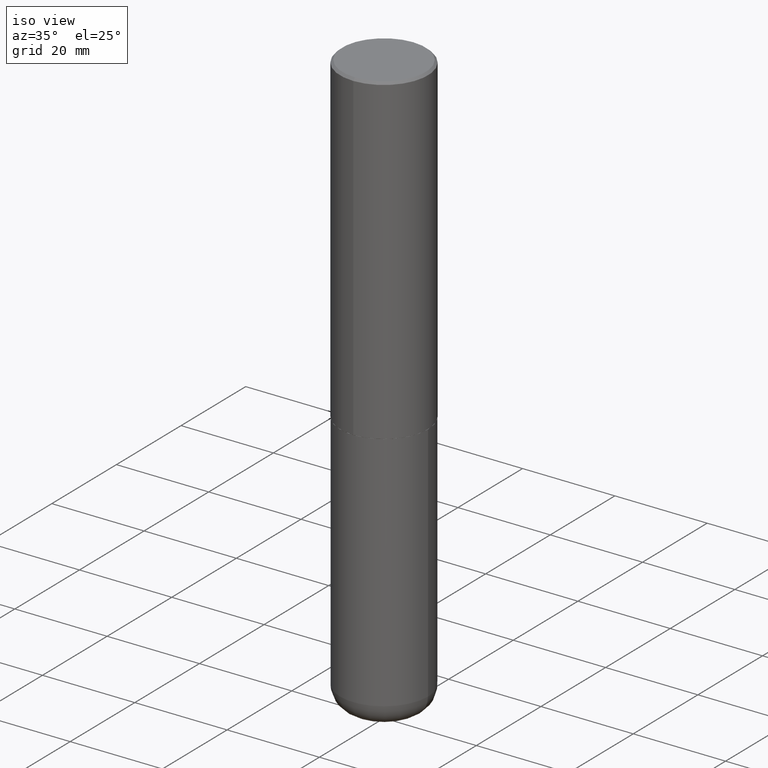
[diagram: clean part render]
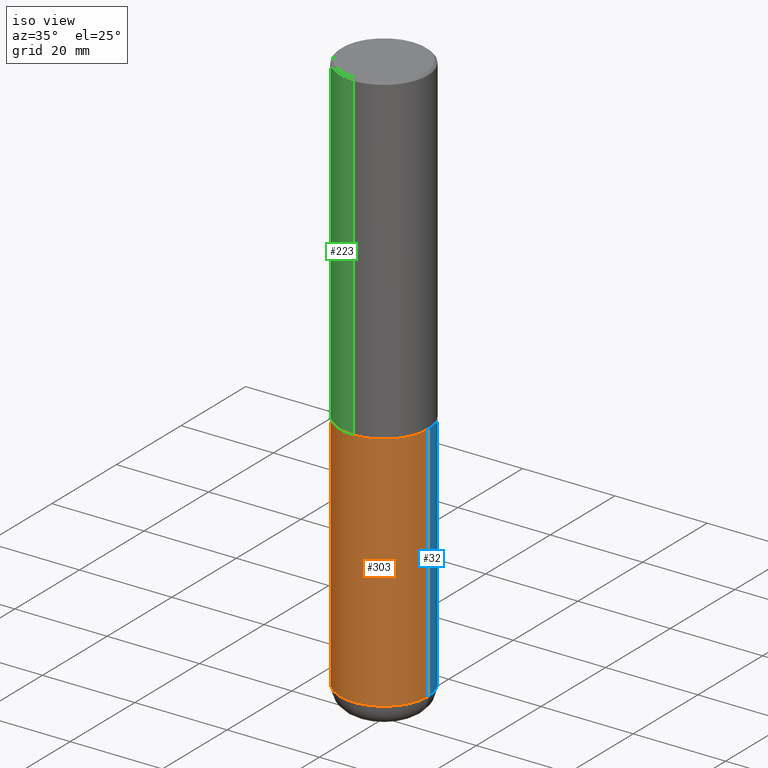
[diagram: same view with three faces highlighted in distinct colors, each labeled with its STEP entity id]
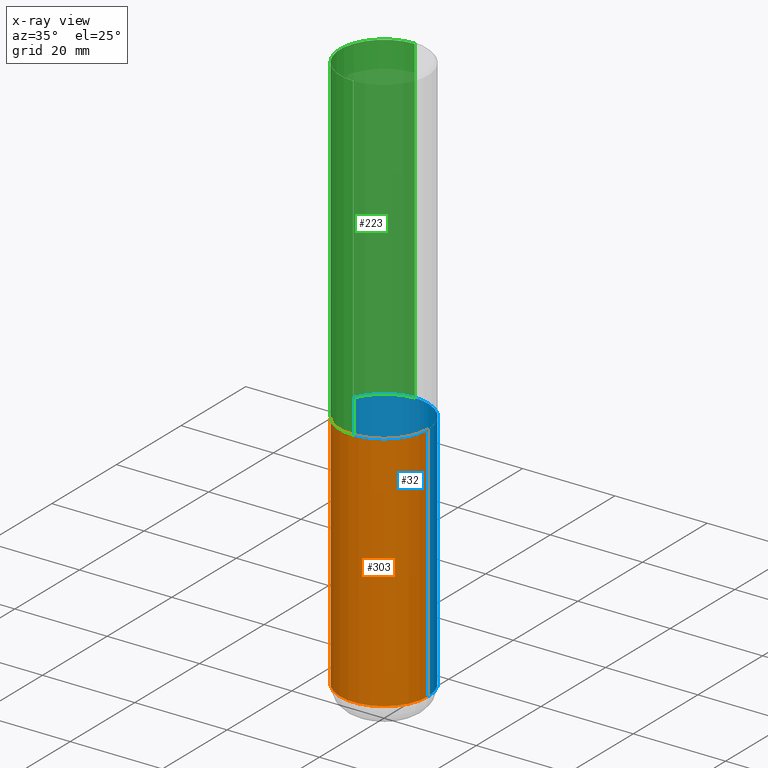
[diagram: x-ray of the same camera — body ghosted, the three highlighted faces saturated]
A machine part, iso view with three faces highlighted in distinct colors.
The next image is the same camera in x-ray (body ghosted, the three faces saturated) — at least one of them is partly hidden behind the body in this view.
Their STEP definitions:

[orange] entity #303 — the highlighted cylindrical surface (partial cylindrical patch) has radius 9.525 mm, axis along (-0, 0, 1).
#1 = DIRECTION ( 'NONE',  ( 1.000000000000000000, -6.982962677686266711E-15, 0.000000000000000000 ) ) ;
#18 = EDGE_CURVE ( 'NONE', #40, #276, #51, .T. ) ;
#19 = CARTESIAN_POINT ( 'NONE',  ( -0.3750000000000001110, 2.664535259100376486E-15, -1.844600658845590159E-29 ) ) ;
#33 = AXIS2_PLACEMENT_3D ( 'NONE', #321, #121, #250 ) ;
#38 = ORIENTED_EDGE ( 'NONE', *, *, #41, .T. ) ;
#40 = VERTEX_POINT ( 'NONE', #231 ) ;
#41 = EDGE_CURVE ( 'NONE', #195, #276, #267, .T. ) ;
#43 = DIRECTION ( 'NONE',  ( -2.445468806185136597E-29, 3.491481338843145583E-15, 1.000000000000000000 ) ) ;
#47 = CARTESIAN_POINT ( 'NONE',  ( 0.3750000000000000555, -1.941263624396788015E-14, -4.810000000000000497 ) ) ;
#51 = CIRCLE ( 'NONE', #96, 0.3750000000000000555 ) ;
#69 = CARTESIAN_POINT ( 'NONE',  ( 6.725039217009124520E-29, -9.601573681818649859E-15, -2.750000000000000000 ) ) ;
#71 = ORIENTED_EDGE ( 'NONE', *, *, #126, .F. ) ;
#73 = VERTEX_POINT ( 'NONE', #107 ) ;
#84 = DIRECTION ( 'NONE',  ( -2.445468806185136597E-29, 3.491481338843145583E-15, 1.000000000000000000 ) ) ;
#91 = CIRCLE ( 'NONE', #149, 0.3750000000000001110 ) ;
#96 = AXIS2_PLACEMENT_3D ( 'NONE', #69, #43, #1 ) ;
#107 = CARTESIAN_POINT ( 'NONE',  ( -0.3750000000000000555, -1.412948998073515443E-14, -4.810000000000000497 ) ) ;
#121 = DIRECTION ( 'NONE',  ( -2.445468806185136597E-29, 3.491481338843145583E-15, 1.000000000000000000 ) ) ;
#126 = EDGE_CURVE ( 'NONE', #73, #40, #207, .T. ) ;
#128 = EDGE_LOOP ( 'NONE', ( #71, #158, #38, #191 ) ) ;
#132 = CARTESIAN_POINT ( 'NONE',  ( 1.176270495775050811E-28, -1.679402523983553013E-14, -4.810000000000000497 ) ) ;
#142 = DIRECTION ( 'NONE',  ( -2.445468806185136877E-29, 3.491481338843145188E-15, 1.000000000000000000 ) ) ;
#149 = AXIS2_PLACEMENT_3D ( 'NONE', #132, #84, #407 ) ;
#156 = VECTOR ( 'NONE', #142, 39.37007874015748143 ) ;
#158 = ORIENTED_EDGE ( 'NONE', *, *, #324, .T. ) ;
#191 = ORIENTED_EDGE ( 'NONE', *, *, #18, .F. ) ;
#195 = VERTEX_POINT ( 'NONE', #47 ) ;
#207 = LINE ( 'NONE', #19, #397 ) ;
#215 = FACE_OUTER_BOUND ( 'NONE', #128, .T. ) ;
#231 = CARTESIAN_POINT ( 'NONE',  ( -0.3750000000000000555, -1.053326420172671351E-14, -2.750000000000000000 ) ) ;
#250 = DIRECTION ( 'NONE',  ( 1.000000000000000000, -6.982962677686265922E-15, 4.876176775795935793E-29 ) ) ;
#252 = CYLINDRICAL_SURFACE ( 'NONE', #33, 0.3750000000000001110 ) ;
#267 = LINE ( 'NONE', #310, #156 ) ;
#271 = DIRECTION ( 'NONE',  ( -2.445468806185136877E-29, 3.491481338843145188E-15, 1.000000000000000000 ) ) ;
#276 = VERTEX_POINT ( 'NONE', #279 ) ;
#279 = CARTESIAN_POINT ( 'NONE',  ( 0.3750000000000000555, -1.222018468595100145E-14, -2.750000000000000000 ) ) ;
#303 = ADVANCED_FACE ( 'NONE', ( #215 ), #252, .T. ) ;
#310 = CARTESIAN_POINT ( 'NONE',  ( 0.3750000000000001110, -2.618611004132350411E-15, 1.828566290923476483E-29 ) ) ;
#321 = CARTESIAN_POINT ( 'NONE',  ( 0.000000000000000000, 0.000000000000000000, 0.000000000000000000 ) ) ;
#324 = EDGE_CURVE ( 'NONE', #73, #195, #91, .T. ) ;
#397 = VECTOR ( 'NONE', #271, 39.37007874015748143 ) ;
#407 = DIRECTION ( 'NONE',  ( 1.000000000000000000, -6.982962677686265922E-15, 0.000000000000000000 ) ) ;

[blue] entity #32 — the highlighted cylindrical surface (partial cylindrical patch) has radius 9.525 mm, axis along (-0, 0, 1).
#19 = CARTESIAN_POINT ( 'NONE',  ( -0.3750000000000001110, 2.664535259100376486E-15, -1.844600658845590159E-29 ) ) ;
#32 = ADVANCED_FACE ( 'NONE', ( #404 ), #199, .T. ) ;
#40 = VERTEX_POINT ( 'NONE', #231 ) ;
#41 = EDGE_CURVE ( 'NONE', #195, #276, #267, .T. ) ;
#47 = CARTESIAN_POINT ( 'NONE',  ( 0.3750000000000000555, -1.941263624396788015E-14, -4.810000000000000497 ) ) ;
#70 = AXIS2_PLACEMENT_3D ( 'NONE', #155, #253, #357 ) ;
#73 = VERTEX_POINT ( 'NONE', #107 ) ;
#79 = DIRECTION ( 'NONE',  ( -2.445468806185136597E-29, 3.491481338843145583E-15, 1.000000000000000000 ) ) ;
#103 = CIRCLE ( 'NONE', #298, 0.3750000000000001110 ) ;
#107 = CARTESIAN_POINT ( 'NONE',  ( -0.3750000000000000555, -1.412948998073515443E-14, -4.810000000000000497 ) ) ;
#116 = DIRECTION ( 'NONE',  ( -2.445468806185136597E-29, 3.491481338843145583E-15, 1.000000000000000000 ) ) ;
#118 = EDGE_CURVE ( 'NONE', #195, #73, #103, .T. ) ;
#126 = EDGE_CURVE ( 'NONE', #73, #40, #207, .T. ) ;
#142 = DIRECTION ( 'NONE',  ( -2.445468806185136877E-29, 3.491481338843145188E-15, 1.000000000000000000 ) ) ;
#148 = ORIENTED_EDGE ( 'NONE', *, *, #41, .F. ) ;
#155 = CARTESIAN_POINT ( 'NONE',  ( 6.725039217009124520E-29, -9.601573681818649859E-15, -2.750000000000000000 ) ) ;
#156 = VECTOR ( 'NONE', #142, 39.37007874015748143 ) ;
#193 = EDGE_LOOP ( 'NONE', ( #328, #333, #244, #148 ) ) ;
#195 = VERTEX_POINT ( 'NONE', #47 ) ;
#199 = CYLINDRICAL_SURFACE ( 'NONE', #396, 0.3750000000000001110 ) ;
#203 = CARTESIAN_POINT ( 'NONE',  ( 0.000000000000000000, 0.000000000000000000, 0.000000000000000000 ) ) ;
#207 = LINE ( 'NONE', #19, #397 ) ;
#211 = CARTESIAN_POINT ( 'NONE',  ( 1.176270495775050811E-28, -1.679402523983553013E-14, -4.810000000000000497 ) ) ;
#231 = CARTESIAN_POINT ( 'NONE',  ( -0.3750000000000000555, -1.053326420172671351E-14, -2.750000000000000000 ) ) ;
#244 = ORIENTED_EDGE ( 'NONE', *, *, #270, .F. ) ;
#245 = DIRECTION ( 'NONE',  ( 1.000000000000000000, -6.982962677686265922E-15, 4.876176775795935793E-29 ) ) ;
#247 = CIRCLE ( 'NONE', #70, 0.3750000000000000555 ) ;
#253 = DIRECTION ( 'NONE',  ( -2.445468806185136597E-29, 3.491481338843145583E-15, 1.000000000000000000 ) ) ;
#267 = LINE ( 'NONE', #310, #156 ) ;
#270 = EDGE_CURVE ( 'NONE', #276, #40, #247, .T. ) ;
#271 = DIRECTION ( 'NONE',  ( -2.445468806185136877E-29, 3.491481338843145188E-15, 1.000000000000000000 ) ) ;
#276 = VERTEX_POINT ( 'NONE', #279 ) ;
#279 = CARTESIAN_POINT ( 'NONE',  ( 0.3750000000000000555, -1.222018468595100145E-14, -2.750000000000000000 ) ) ;
#298 = AXIS2_PLACEMENT_3D ( 'NONE', #211, #79, #340 ) ;
#310 = CARTESIAN_POINT ( 'NONE',  ( 0.3750000000000001110, -2.618611004132350411E-15, 1.828566290923476483E-29 ) ) ;
#328 = ORIENTED_EDGE ( 'NONE', *, *, #118, .T. ) ;
#333 = ORIENTED_EDGE ( 'NONE', *, *, #126, .T. ) ;
#340 = DIRECTION ( 'NONE',  ( 1.000000000000000000, -6.982962677686265922E-15, 0.000000000000000000 ) ) ;
#357 = DIRECTION ( 'NONE',  ( 1.000000000000000000, -6.982962677686266711E-15, 0.000000000000000000 ) ) ;
#396 = AXIS2_PLACEMENT_3D ( 'NONE', #203, #116, #245 ) ;
#397 = VECTOR ( 'NONE', #271, 39.37007874015748143 ) ;
#404 = FACE_OUTER_BOUND ( 'NONE', #193, .T. ) ;

[green] entity #223 — the highlighted cylindrical surface (partial cylindrical patch) has radius 9.525 mm, axis along (-0, 0, 1).
#27 = DIRECTION ( 'NONE',  ( -2.446040391741596606E-29, 3.490662795793665557E-15, 1.000000000000000000 ) ) ;
#34 = CIRCLE ( 'NONE', #291, 0.3750000000000003886 ) ;
#39 = VERTEX_POINT ( 'NONE', #263 ) ;
#63 = CARTESIAN_POINT ( 'NONE',  ( -2.572686749164323547E-15, -0.3750000000000001110, -0.01999999999999877570 ) ) ;
#65 = CARTESIAN_POINT ( 'NONE',  ( 2.664535259100411196E-15, 0.3749999999999907296, -2.749000000000000998 ) ) ;
#67 = DIRECTION ( 'NONE',  ( -6.982962677686265922E-15, -1.000000000000000000, 2.913971193241877611E-15 ) ) ;
#72 = ORIENTED_EDGE ( 'NONE', *, *, #329, .F. ) ;
#95 = ORIENTED_EDGE ( 'NONE', *, *, #380, .F. ) ;
#101 = VERTEX_POINT ( 'NONE', #306 ) ;
#124 = DIRECTION ( 'NONE',  ( -2.446040391741596606E-29, 3.490662795793665557E-15, 1.000000000000000000 ) ) ;
#141 = LINE ( 'NONE', #204, #161 ) ;
#143 = LINE ( 'NONE', #147, #182 ) ;
#147 = CARTESIAN_POINT ( 'NONE',  ( -2.618611004132351594E-15, -0.3750000000000002220, 1.308998548422625521E-15 ) ) ;
#161 = VECTOR ( 'NONE', #212, 39.37007874015748143 ) ;
#170 = CYLINDRICAL_SURFACE ( 'NONE', #174, 0.3750000000000002220 ) ;
#174 = AXIS2_PLACEMENT_3D ( 'NONE', #304, #27, #415 ) ;
#182 = VECTOR ( 'NONE', #339, 39.37007874015748143 ) ;
#204 = CARTESIAN_POINT ( 'NONE',  ( 2.664535259100376880E-15, 0.3750000000000002220, -1.308998548422625521E-15 ) ) ;
#208 = DIRECTION ( 'NONE',  ( -2.446040391741596606E-29, 3.490662795793665557E-15, 1.000000000000000000 ) ) ;
#212 = DIRECTION ( 'NONE',  ( -2.446040391741596606E-29, 3.490662795793665557E-15, 1.000000000000000000 ) ) ;
#223 = ADVANCED_FACE ( 'NONE', ( #412 ), #170, .T. ) ;
#229 = EDGE_LOOP ( 'NONE', ( #72, #293, #371, #95 ) ) ;
#230 = CIRCLE ( 'NONE', #382, 0.3750000000000000555 ) ;
#237 = DIRECTION ( 'NONE',  ( -6.982962677686265922E-15, -1.000000000000000000, 3.494488891895536035E-15 ) ) ;
#262 = CARTESIAN_POINT ( 'NONE',  ( 4.892080783483214581E-31, -6.981325591587361238E-17, -0.02000000000000008715 ) ) ;
#263 = CARTESIAN_POINT ( 'NONE',  ( 2.618611004132350411E-15, 0.3749999999999999445, -0.02000000000000139513 ) ) ;
#272 = VERTEX_POINT ( 'NONE', #65 ) ;
#287 = EDGE_CURVE ( 'NONE', #272, #101, #34, .T. ) ;
#291 = AXIS2_PLACEMENT_3D ( 'NONE', #320, #124, #67 ) ;
#293 = ORIENTED_EDGE ( 'NONE', *, *, #287, .T. ) ;
#295 = VERTEX_POINT ( 'NONE', #63 ) ;
#304 = CARTESIAN_POINT ( 'NONE',  ( 0.000000000000000000, 0.000000000000000000, 0.000000000000000000 ) ) ;
#306 = CARTESIAN_POINT ( 'NONE',  ( -2.618611004132284935E-15, -0.3750000000000099920, -2.748999999999999222 ) ) ;
#320 = CARTESIAN_POINT ( 'NONE',  ( 6.724165036897648492E-29, -9.595832025636787455E-15, -2.749000000000000110 ) ) ;
#329 = EDGE_CURVE ( 'NONE', #272, #39, #141, .T. ) ;
#339 = DIRECTION ( 'NONE',  ( -2.446040391741596606E-29, 3.490662795793665557E-15, 1.000000000000000000 ) ) ;
#371 = ORIENTED_EDGE ( 'NONE', *, *, #379, .T. ) ;
#379 = EDGE_CURVE ( 'NONE', #101, #295, #143, .T. ) ;
#380 = EDGE_CURVE ( 'NONE', #39, #295, #230, .T. ) ;
#382 = AXIS2_PLACEMENT_3D ( 'NONE', #262, #208, #237 ) ;
#412 = FACE_OUTER_BOUND ( 'NONE', #229, .T. ) ;
#415 = DIRECTION ( 'NONE',  ( -6.982962677686266711E-15, -1.000000000000000000, 3.490662795793665951E-15 ) ) ;